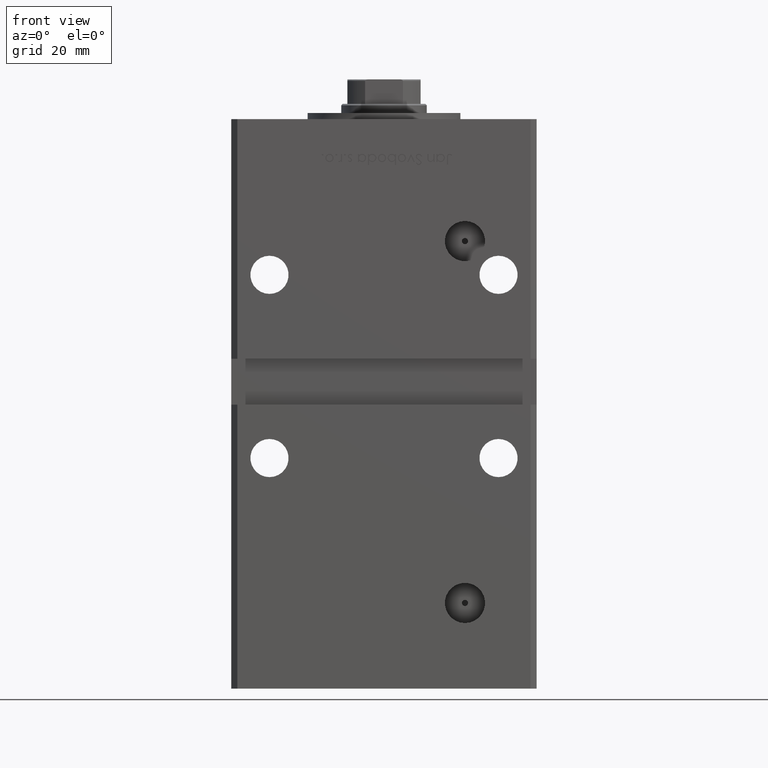
[diagram: clean part render]
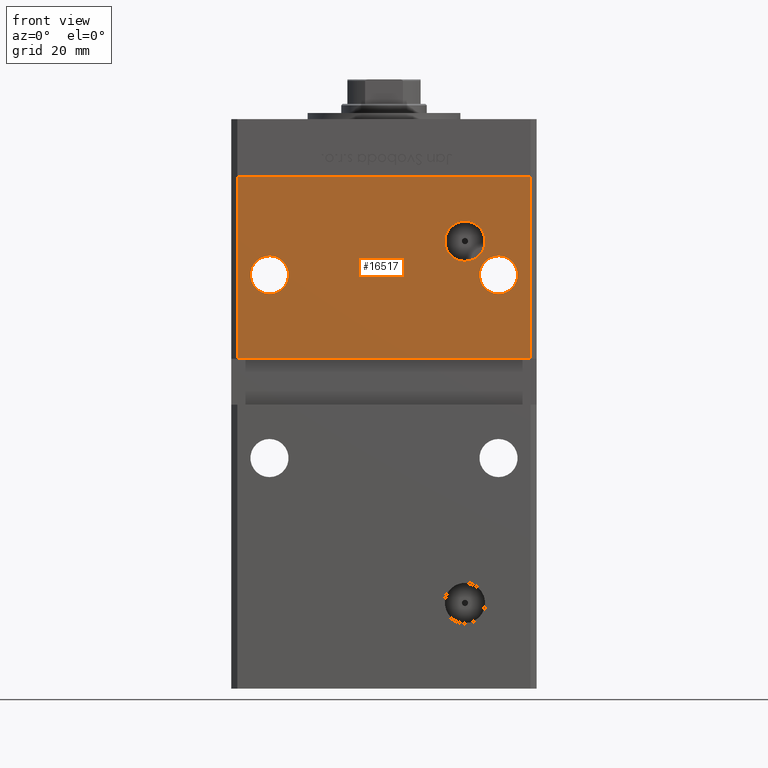
[diagram: same view with one face highlighted and labeled with its STEP entity id]
A machine part, front view. The second image highlights one B-rep face of the part: STEP entity #16517.
In plain terms, the highlighted planar face has unit normal (0, 1, 0).
Its self-contained STEP definition (entity closure, byte-faithful):
#299 = LINE ( 'NONE', #37397, #13331 ) ;
#365 = FACE_BOUND ( 'NONE', #12631, .T. ) ;
#651 = VECTOR ( 'NONE', #50532, 1000.000000000000000 ) ;
#1533 = CARTESIAN_POINT ( 'NONE',  ( 37.50000000000000000, -43.50000000000000000, 116.4999999999999858 ) ) ;
#1937 = ORIENTED_EDGE ( 'NONE', *, *, #4140, .T. ) ;
#2607 = EDGE_CURVE ( 'NONE', #24916, #13423, #42572, .T. ) ;
#2735 = DIRECTION ( 'NONE',  ( -0.000000000000000000, -0.000000000000000000, -1.000000000000000000 ) ) ;
#3067 = CARTESIAN_POINT ( 'NONE',  ( 26.49999999999997513, -43.50000000000000000, 134.0800000000000125 ) ) ;
#3385 = VECTOR ( 'NONE', #27010, 1000.000000000000000 ) ;
#3882 = PLANE ( 'NONE',  #31730 ) ;
#4140 = EDGE_CURVE ( 'NONE', #47087, #42700, #28807, .T. ) ;
#4278 = CARTESIAN_POINT ( 'NONE',  ( 37.50000000000000000, -43.50000000000000000, 122.7500000000000000 ) ) ;
#4421 = FACE_BOUND ( 'NONE', #49975, .T. ) ;
#5809 = EDGE_CURVE ( 'NONE', #42700, #47087, #10783, .T. ) ;
#6177 = VERTEX_POINT ( 'NONE', #40072 ) ;
#6416 = CIRCLE ( 'NONE', #37316, 6.579999999999988525 ) ;
#7233 = DIRECTION ( 'NONE',  ( 0.000000000000000000, 1.000000000000000000, 0.000000000000000000 ) ) ;
#7599 = ORIENTED_EDGE ( 'NONE', *, *, #20883, .F. ) ;
#7874 = CARTESIAN_POINT ( 'NONE',  ( 26.49999999999997513, -43.50000000000000000, 127.5000000000000000 ) ) ;
#8176 = FACE_BOUND ( 'NONE', #11927, .T. ) ;
#8553 = CARTESIAN_POINT ( 'NONE',  ( -47.99999999999998579, -43.50000000000000000, 89.00000000000000000 ) ) ;
#9545 = CIRCLE ( 'NONE', #39569, 6.250000000000005329 ) ;
#10369 = EDGE_CURVE ( 'NONE', #6177, #29147, #29634, .T. ) ;
#10545 = VERTEX_POINT ( 'NONE', #52125 ) ;
#10648 = VECTOR ( 'NONE', #2735, 1000.000000000000000 ) ;
#10750 = CARTESIAN_POINT ( 'NONE',  ( 26.49999999999997513, -43.50000000000000000, 127.5000000000000000 ) ) ;
#10783 = CIRCLE ( 'NONE', #20231, 6.250000000000005329 ) ;
#11357 = DIRECTION ( 'NONE',  ( 0.000000000000000000, 0.000000000000000000, 1.000000000000000000 ) ) ;
#11899 = DIRECTION ( 'NONE',  ( 0.000000000000000000, 0.000000000000000000, -1.000000000000000000 ) ) ;
#11927 = EDGE_LOOP ( 'NONE', ( #26786, #19222 ) ) ;
#12631 = EDGE_LOOP ( 'NONE', ( #22463, #1937 ) ) ;
#13331 = VECTOR ( 'NONE', #29371, 1000.000000000000000 ) ;
#13423 = VERTEX_POINT ( 'NONE', #44507 ) ;
#13469 = CARTESIAN_POINT ( 'NONE',  ( 47.99999999999998579, -43.50000000000000000, 148.5000000000000000 ) ) ;
#14381 = CARTESIAN_POINT ( 'NONE',  ( 37.50000000000000000, -43.50000000000000000, 110.2499999999999858 ) ) ;
#15652 = CARTESIAN_POINT ( 'NONE',  ( 26.49999999999997513, -43.50000000000000000, 120.9200000000000159 ) ) ;
#16517 = ADVANCED_FACE ( 'NONE', ( #365, #8176, #33714, #4421 ), #3882, .F. ) ;
#17034 = ORIENTED_EDGE ( 'NONE', *, *, #10369, .F. ) ;
#18181 = CIRCLE ( 'NONE', #48196, 6.579999999999988525 ) ;
#19065 = CARTESIAN_POINT ( 'NONE',  ( -37.50000000000000000, -43.50000000000000000, 116.4999999999999858 ) ) ;
#19222 = ORIENTED_EDGE ( 'NONE', *, *, #2607, .T. ) ;
#20195 = AXIS2_PLACEMENT_3D ( 'NONE', #43226, #38944, #42704 ) ;
#20231 = AXIS2_PLACEMENT_3D ( 'NONE', #1533, #30074, #41589 ) ;
#20814 = DIRECTION ( 'NONE',  ( 0.000000000000000000, -0.000000000000000000, 1.000000000000000000 ) ) ;
#20883 = EDGE_CURVE ( 'NONE', #29147, #40551, #47402, .T. ) ;
#22327 = DIRECTION ( 'NONE',  ( 0.000000000000000000, 0.000000000000000000, -1.000000000000000000 ) ) ;
#22463 = ORIENTED_EDGE ( 'NONE', *, *, #5809, .T. ) ;
#24916 = VERTEX_POINT ( 'NONE', #35688 ) ;
#26375 = DIRECTION ( 'NONE',  ( -0.000000000000000000, 1.000000000000000000, -0.000000000000000000 ) ) ;
#26786 = ORIENTED_EDGE ( 'NONE', *, *, #30022, .T. ) ;
#27010 = DIRECTION ( 'NONE',  ( -1.000000000000000000, -0.000000000000000000, -0.000000000000000000 ) ) ;
#28640 = ORIENTED_EDGE ( 'NONE', *, *, #31023, .T. ) ;
#28807 = CIRCLE ( 'NONE', #20195, 6.250000000000005329 ) ;
#29147 = VERTEX_POINT ( 'NONE', #52354 ) ;
#29310 = ORIENTED_EDGE ( 'NONE', *, *, #49073, .F. ) ;
#29371 = DIRECTION ( 'NONE',  ( 1.000000000000000000, 0.000000000000000000, 0.000000000000000000 ) ) ;
#29634 = LINE ( 'NONE', #13469, #651 ) ;
#30022 = EDGE_CURVE ( 'NONE', #13423, #24916, #9545, .T. ) ;
#30074 = DIRECTION ( 'NONE',  ( 0.000000000000000000, 1.000000000000000000, 0.000000000000000000 ) ) ;
#31023 = EDGE_CURVE ( 'NONE', #48948, #35056, #18181, .T. ) ;
#31730 = AXIS2_PLACEMENT_3D ( 'NONE', #40683, #37725, #20814 ) ;
#33714 = FACE_OUTER_BOUND ( 'NONE', #36012, .T. ) ;
#35056 = VERTEX_POINT ( 'NONE', #3067 ) ;
#35688 = CARTESIAN_POINT ( 'NONE',  ( -37.50000000000000000, -43.50000000000000000, 110.2499999999999858 ) ) ;
#36012 = EDGE_LOOP ( 'NONE', ( #37308, #7599, #17034, #29310 ) ) ;
#36259 = DIRECTION ( 'NONE',  ( 0.000000000000000000, 0.000000000000000000, 1.000000000000000000 ) ) ;
#36316 = LINE ( 'NONE', #52687, #10648 ) ;
#37308 = ORIENTED_EDGE ( 'NONE', *, *, #41379, .T. ) ;
#37316 = AXIS2_PLACEMENT_3D ( 'NONE', #10750, #26375, #22327 ) ;
#37397 = CARTESIAN_POINT ( 'NONE',  ( -47.99999999999998579, -43.50000000000000000, 148.5000000000000000 ) ) ;
#37725 = DIRECTION ( 'NONE',  ( 0.000000000000000000, 1.000000000000000000, 0.000000000000000000 ) ) ;
#38824 = CARTESIAN_POINT ( 'NONE',  ( -49.99999999999998579, -43.50000000000000000, 89.00000000000000000 ) ) ;
#38944 = DIRECTION ( 'NONE',  ( 0.000000000000000000, 1.000000000000000000, 0.000000000000000000 ) ) ;
#39137 = AXIS2_PLACEMENT_3D ( 'NONE', #19065, #7233, #36259 ) ;
#39569 = AXIS2_PLACEMENT_3D ( 'NONE', #52195, #52721, #11357 ) ;
#40072 = CARTESIAN_POINT ( 'NONE',  ( 47.99999999999998579, -43.50000000000000000, 148.5000000000000000 ) ) ;
#40551 = VERTEX_POINT ( 'NONE', #8553 ) ;
#40683 = CARTESIAN_POINT ( 'NONE',  ( -47.99999999999998579, -43.50000000000000000, 148.5000000000000000 ) ) ;
#41379 = EDGE_CURVE ( 'NONE', #10545, #40551, #36316, .T. ) ;
#41589 = DIRECTION ( 'NONE',  ( 0.000000000000000000, 0.000000000000000000, 1.000000000000000000 ) ) ;
#42572 = CIRCLE ( 'NONE', #39137, 6.250000000000005329 ) ;
#42700 = VERTEX_POINT ( 'NONE', #4278 ) ;
#42704 = DIRECTION ( 'NONE',  ( 0.000000000000000000, 0.000000000000000000, 1.000000000000000000 ) ) ;
#43226 = CARTESIAN_POINT ( 'NONE',  ( 37.50000000000000000, -43.50000000000000000, 116.4999999999999858 ) ) ;
#44507 = CARTESIAN_POINT ( 'NONE',  ( -37.50000000000000000, -43.50000000000000000, 122.7500000000000000 ) ) ;
#46889 = ORIENTED_EDGE ( 'NONE', *, *, #47352, .T. ) ;
#47087 = VERTEX_POINT ( 'NONE', #14381 ) ;
#47352 = EDGE_CURVE ( 'NONE', #35056, #48948, #6416, .T. ) ;
#47402 = LINE ( 'NONE', #38824, #3385 ) ;
#48196 = AXIS2_PLACEMENT_3D ( 'NONE', #7874, #51937, #11899 ) ;
#48948 = VERTEX_POINT ( 'NONE', #15652 ) ;
#49073 = EDGE_CURVE ( 'NONE', #10545, #6177, #299, .T. ) ;
#49975 = EDGE_LOOP ( 'NONE', ( #28640, #46889 ) ) ;
#50532 = DIRECTION ( 'NONE',  ( -0.000000000000000000, -0.000000000000000000, -1.000000000000000000 ) ) ;
#51937 = DIRECTION ( 'NONE',  ( -0.000000000000000000, 1.000000000000000000, -0.000000000000000000 ) ) ;
#52125 = CARTESIAN_POINT ( 'NONE',  ( -47.99999999999998579, -43.50000000000000000, 148.5000000000000000 ) ) ;
#52195 = CARTESIAN_POINT ( 'NONE',  ( -37.50000000000000000, -43.50000000000000000, 116.4999999999999858 ) ) ;
#52354 = CARTESIAN_POINT ( 'NONE',  ( 47.99999999999998579, -43.50000000000000000, 89.00000000000000000 ) ) ;
#52687 = CARTESIAN_POINT ( 'NONE',  ( -47.99999999999998579, -43.50000000000000000, 148.5000000000000000 ) ) ;
#52721 = DIRECTION ( 'NONE',  ( 0.000000000000000000, 1.000000000000000000, 0.000000000000000000 ) ) ;